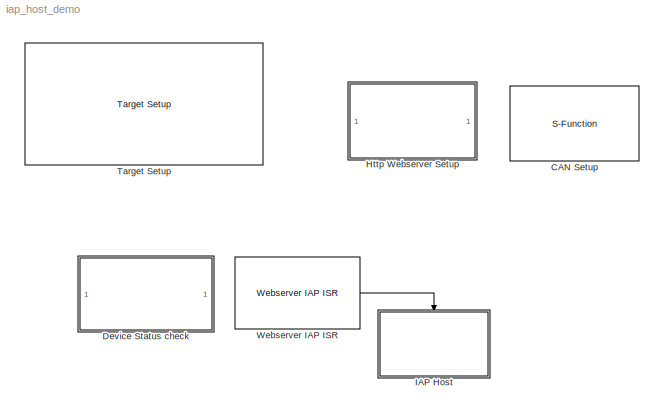
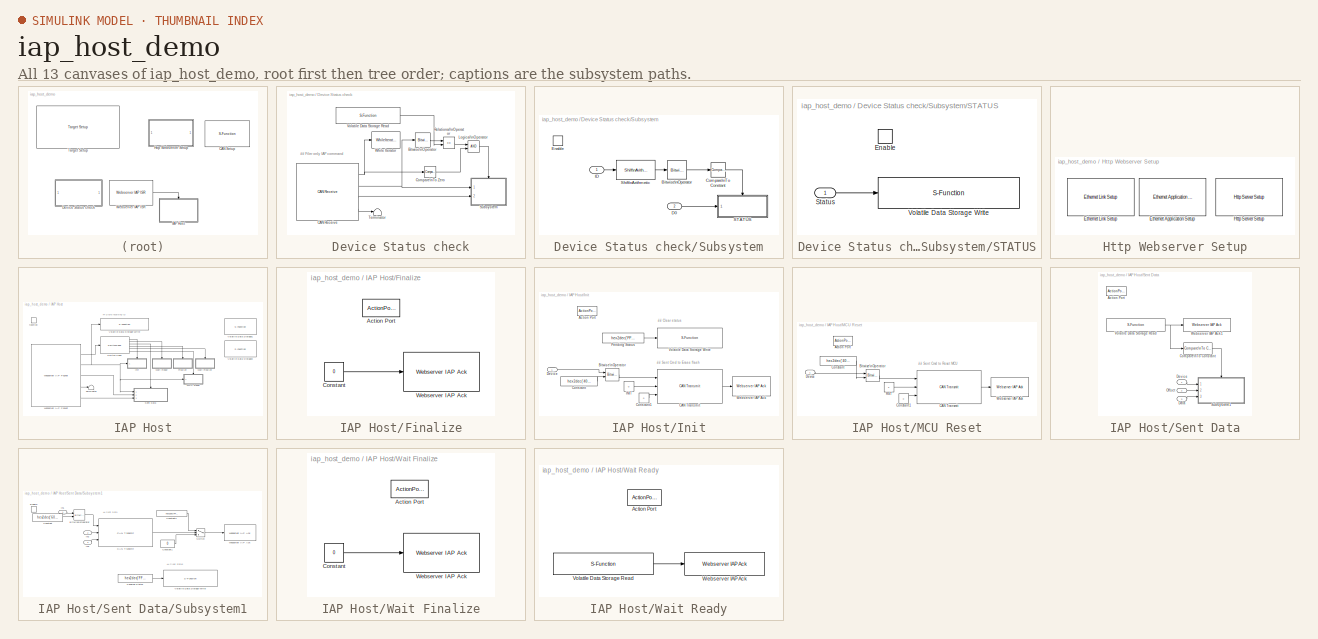
[diagram: thumbnail index - all 13 canvases of the model, root first then tree order]
MODEL iap_host_demo
KIND model
CONFIG PreLoadFcn = waijung.modelPreload; % Required for working with Waijung Blockset. Do not remove.
BLOCK [S-Function] CAN Setup
  EnableBusSupport = off
  FunctionName = stm32f4_can
  MaskCallbackString = |stm32f4_can_callback('canmodule');|stm32f4_can_callback('advance');|stm32f4_can_callback('bitrate_select');||stm32f4_can_callback('timingconf');|stm32f4_can_callback('timingconf');|stm32f4_can_callback('timingconf');|stm32f4_can_callback('timingconf');|stm32f4_can_callback('timingconf');||stm32f4_can_callback('remaptxpin');|stm32f4_can_callback('remaprxpin');|stm32f4_can_callback('sampletime');|s...<+82ch>
  MaskDescription = This block setups CAN Module.
  MaskDisplay = text(0.5, 0.5, 'CAN1_Setup\\nSpeed (bps): 125000\\nTx/Rx pin: B9/B8','ver','middle','hor','center');
  MaskEnableString = on,on,on,on,on,on,on,on,on,off,off,on,on,on,off,off,on,on,on,on,on,on,on,on,on,on,on,on
  MaskHelp = web(fullfile(waijungdocroot,'stm32f4_can_setup.htm'), '-browser')
  MaskIconFrame = on
  MaskIconOpaque = on
  MaskIconRotate = none
  MaskIconUnits = normalized
  MaskInitialization = stm32f4_can_callback('init');
  MaskPortRotate = default
  MaskPromptString = Configuration|CAN Module|Advance configuration|Baud rate (bps)|Resync Jump Width (SJW)|Bit segment 1 (BS1) + PROP_SEG|Bit segment 2 (BS2)|Adjust|Baud rate prescaler (BRP)|Baud rate (bps)|Time Quantum (Second), tq|CAN Tx pin|CAN Rx pin|Sample time (sec)|Compiled sample time (sec) in string|BlockID|Input port|Input port label|Output port|Output port label|Compatibility (Reserved for future use)|Conf...<+104ch>
  MaskSelfModifiable = on
  MaskStyleString = popup(Setup),popup(1|2),checkbox,popup(125000|250000|500000|1000000),popup(1tq|2tq|3tq|4tq),popup(1tq|2tq|3tq|4tq|5tq|6tq|7tq|8tq|9tq|10tq|11tq|12tq|13tq|14tq|15tq|16tq),popup(1tq|2tq|3tq|4tq|5tq|6tq|7tq|8tq),popup(Prescaler|Baudrate),edit,edit,edit,popup(Not used|A12|B9|D1|H13),popup(Not used|A11|B8|D0|I9),edit,edit,edit,edit,edit,edit,edit,edit,edit,edit,edit,edit,edit,edit,edit
  MaskTabNameString = ,,,,,,,,,,,,,,,,,,,,,,,,,,,
  MaskToolTipString = on,on,on,on,on,on,on,on,on,on,on,on,on,on,on,on,on,on,on,on,on,on,on,on,on,on,on,on
  MaskTunableValueString = off,off,off,off,off,off,off,off,off,off,off,off,off,off,off,off,off,off,off,off,off,off,off,off,off,off,off,off
  MaskType = stm32f4_can
  MaskValueString = Setup|1|off|125000|1tq|14tq|6tq|Prescaler|16|125000|3.8095e-007|B9|B8|inf|0.001|CANSetup|[]|{}|[]|{}|0|[\"125000\",\"16\",\"B\",\"9\",\"B\",\"8\",\"1tq\",\"14tq\",\"6tq\",\"ENABLE\"]|16|B|9|B|8|1
  MaskVarAliasString = ,,,,,,,,,,,,,,,,,,,,,,,,,,,
  MaskVariables = conf=&1;canmodule=&2;advance=&3;bitrate_select=&4;sjw=&5;bs1=&6;bs2=&7;timingconf=&8;brp=@9;bitrate=@10;tq=&11;remaptxpin=&12;remaprxpin=&13;sampletime=@14;sampletimestr=&15;blockid=&16;inputarray=@17;inputlabelarray=&18;outputarray=@19;outputlabelarray=&20;compat=&21;confstr=&22;presc=&23;txportstr=&24;txpinstr=&25;rxportstr=&26;rxpinstr=&27;lastmodule=&28;
  MaskVisibilityString = off,on,on,on,off,off,off,off,off,off,off,on,on,on,off,off,off,off,off,off,off,off,off,off,off,off,off,off
  Parameters = conf,canmodule,0,inputarray,outputarray,'','',confstr,sampletime,sampletimestr,blockid
  Ports = []
BLOCK [SubSystem] Device Status check
  FunctionWithSeparateData = off
  MaskHideContents = off
  MinAlgLoopOccurrences = off
  Opaque = off
  Ports = []
  PropExecContextOutsideSubsystem = off
  RTWSystemCode = Auto
  RequestExecContextInheritance = off
  TreatAsAtomicUnit = on
BLOCK [Reference] Device Status check/Bitwise\nOperator  REF=simulink/Logic and Bit\nOperations/Bitwise\nOperator
  BitMask = 255
  BitMaskRealWorld = Stored Integer
  NumInputPorts = 1
  Ports = [1, 1]
  SourceBlock = simulink/Logic and Bit\nOperations/Bitwise\nOperator
  SourceType = Bitwise Operator
  UseBitMask = on
  logicop = AND
BLOCK [Reference] Device Status check/CAN Receive  REF=stm32f4_canbus_lib/CAN Receive
  Ports = [0, 4]
  SourceBlock = stm32f4_canbus_lib/CAN Receive
  SourceType = stm32f4_can
  blockid = DeviceStatuscheckCANReceive
  buffersize = 32
  canmodule = 1
  compat = 0
  conf = Rx
  confstr = [\"Standard\",\"Mask\",\"1024\",\"1264\",\"off\",\"uint32\",\"uint32\",\"Not used\",\"Not used\",\"Not used\",\"Not used\",\"Not used\",\"Not used\",\"32\",\"8000\",\"0\",\"9E00\",\"4\"]
  data0type = uint32
  data1type = uint32
  data2type = Not used
  data3type = Not used
  data4type = Not used
  data5type = Not used
  data6type = Not used
  data7type = Not used
  datatype = uint32
  enableisr = off
  filtertype = Mask
  id = hex2dec('400')
  idmask = hex2dec('4F0')
  idtype = Standard
  inputarray = []
  inputlabelarray = {}
  outputarray = [ 5, 7, 7, 7]
  outputlabelarray = { 'Msg Pending','ID', 'D0 (uint32)', 'D1 (uint32)' }
  sampletime = inf
  sampletimestr = -1
  usedlc = off
BLOCK [Reference] Device Status check/Compare\nTo Zero  REF=simulink/Logic and Bit\nOperations/Compare\nTo Zero
  FunctionWithSeparateData = off
  LogicOutDataTypeMode = uint8
  Ports = [1, 1]
  RTWMemSecDataConstants = Inherit from model
  RTWMemSecDataInternal = Inherit from model
  RTWMemSecDataParameters = Inherit from model
  RTWMemSecFuncExecute = Inherit from model
  RTWMemSecFuncInitTerm = Inherit from model
  ShowPortLabels = FromPortIcon
  SourceBlock = simulink/Logic and Bit\nOperations/Compare\nTo Zero
  SourceType = Compare To Zero
  SystemSampleTime = -1
  ZeroCross = off
  relop = >
BLOCK [Logic] Device Status check/Logical\nOperator
  AllPortsSameDT = off
  LogicDataType = fixdt(0, 8)
  OutDataTypeMode = boolean
  OutDataTypeStr = boolean
  Ports = [2, 1]
BLOCK [RelationalOperator] Device Status check/Relational\nOperator
  InputSameDT = off
  LogicDataType = fixdt(0, 8)
  LogicOutDataTypeMode = boolean
  Operator = ==
  OutDataTypeStr = boolean
BLOCK [SubSystem] Device Status check/Subsystem
  FunctionWithSeparateData = off
  MaskHideContents = off
  MinAlgLoopOccurrences = off
  Opaque = off
  Ports = [2, 0, 1]
  PropExecContextOutsideSubsystem = off
  RTWSystemCode = Auto
  RequestExecContextInheritance = off
BLOCK [Reference] Device Status check/Subsystem/Bitwise\nOperator  REF=simulink/Logic and Bit\nOperations/Bitwise\nOperator
  BitMask = 3
  BitMaskRealWorld = Stored Integer
  NumInputPorts = 1
  Ports = [1, 1]
  SourceBlock = simulink/Logic and Bit\nOperations/Bitwise\nOperator
  SourceType = Bitwise Operator
  UseBitMask = on
  logicop = AND
BLOCK [Reference] Device Status check/Subsystem/Compare\nTo Constant  REF=simulink/Logic and Bit\nOperations/Compare\nTo Constant
  FunctionWithSeparateData = off
  LogicOutDataTypeMode = uint8
  Ports = [1, 1]
  RTWMemSecDataConstants = Inherit from model
  RTWMemSecDataInternal = Inherit from model
  RTWMemSecDataParameters = Inherit from model
  RTWMemSecFuncExecute = Inherit from model
  RTWMemSecFuncInitTerm = Inherit from model
  ShowPortLabels = FromPortIcon
  SourceBlock = simulink/Logic and Bit\nOperations/Compare\nTo Constant
  SourceType = Compare To Constant
  SystemSampleTime = -1
  ZeroCross = off
  const = 1
  relop = ==
BLOCK [Inport] Device Status check/Subsystem/D0
  IconDisplay = Port number
  Port = 2
BLOCK [EnablePort] Device Status check/Subsystem/Enable
  Ports = []
BLOCK [Inport] Device Status check/Subsystem/ID
  IconDisplay = Port number
BLOCK [SubSystem] Device Status check/Subsystem/STATUS
  FunctionWithSeparateData = off
  MaskHideContents = off
  MinAlgLoopOccurrences = off
  Opaque = off
  Ports = [1, 0, 1]
  PropExecContextOutsideSubsystem = off
  RTWSystemCode = Auto
  RequestExecContextInheritance = off
  TreatAsAtomicUnit = on
BLOCK [EnablePort] Device Status check/Subsystem/STATUS/Enable
  Ports = []
BLOCK [Inport] Device Status check/Subsystem/STATUS/Status
  IconDisplay = Port number
  OutDataType = fixdt(1, 16)
  OutScaling = 2^0
BLOCK [S-Function] Device Status check/Subsystem/STATUS/Volatile Data Storage Write
  EnableBusSupport = off
  FunctionName = waijung_vdata_write
  MaskCallbackString = waijung_vdata_write_callback('storagename');|waijung_vdata_write_callback('varname');|waijung_vdata_write_callback('sampletime');|waijung_vdata_write_callback('sampletimestr');|waijung_vdata_write_callback('blockid');|waijung_vdata_write_callback('storagetype');|  <repeated x4 — deduplicated; at blocks: Volatile Data Storage Write>
  MaskDescription = This block implements write data to a buffer.
  MaskDisplay = text(0.95, 0.5, 'Buffer: IAP_Device_Sta','ver','middle','hor','right');port_label('input',1,'D1(uint32)')
  MaskEnableString = on,off,off,off,off,on,on
  MaskHelp = web(fullfile(waijungdocroot,'Volatile_Data_Storage_Write.htm'))
  MaskIconFrame = on
  MaskIconOpaque = on
  MaskIconRotate = none
  MaskIconUnits = normalized
  MaskInitialization = waijung_vdata_write_callback('init');
  MaskPortRotate = default
  MaskPromptString = Storage Name|Variable name|Sample time (sec)|Compiled sample time (sec) in string|BlockID|Data type|Data type string
  MaskSelfModifiable = on
  MaskStyleString = popup(IAP_Device_Id|IAP_Device_Sta),edit,edit,edit,edit,edit,edit
  MaskTabNameString = ,,,,,,
  MaskToolTipString = on,on,on,on,on,on,on
  MaskTunableValueString = off,off,off,off,off,off,off
  MaskType = waijung_vdata_write
  MaskValueString = IAP_Device_Sta|IAPHostVolatileDataStorage2_IAP_Device_Sta|-1|-1|DeviceStatuscheckSubsystemSTATUSVolatileDataStorageWrite|uint32|uint32_t
  MaskVarAliasString = ,,,,,,
  MaskVariables = storagename=&1;varname=&2;sampletime=@3;sampletimestr=&4;blockid=&5;storagetype=&6;storagetypestr=&7;
  MaskVisibilityString = on,off,on,off,off,off,off
  Parameters = storagename,varname,sampletime,sampletimestr,blockid,storagetype,storagetypestr
  Ports = [1]
BLOCK [Reference] Device Status check/Subsystem/Shift\nArithmetic  REF=simulink/Logic and Bit\nOperations/Shift\nArithmetic
  FunctionWithSeparateData = off
  Ports = [1, 1]
  RTWMemSecDataConstants = Inherit from model
  RTWMemSecDataInternal = Inherit from model
  RTWMemSecDataParameters = Inherit from model
  RTWMemSecFuncExecute = Inherit from model
  RTWMemSecFuncInitTerm = Inherit from model
  ShowPortLabels = FromPortIcon
  SourceBlock = simulink/Logic and Bit\nOperations/Shift\nArithmetic
  SourceType = Shift Arithmetic
  SystemSampleTime = -1
  nBinPtShiftRight = 0
  nBitShiftRight = 8
BLOCK [Terminator] Device Status check/Terminator
BLOCK [S-Function] Device Status check/Volatile Data Storage Read
  EnableBusSupport = off
  FunctionName = waijung_vdata_read
  MaskCallbackString = waijung_vdata_read_callback('storagename');|waijung_vdata_read_callback('varname');|waijung_vdata_read_callback('sampletime');|waijung_vdata_read_callback('sampletimestr');|waijung_vdata_read_callback('blockid');|waijung_vdata_read_callback('storagetype');|  <repeated x3 — deduplicated; at blocks: Volatile Data Storage Read>
  MaskDescription = This block implements read data from a buffer.
  MaskDisplay = text(0.05, 0.5, 'Buffer: IAP_Device_Id','ver','middle','hor','left');port_label('output',1,'D1(uint32)')
  MaskEnableString = on,off,on,off,off,on,on
  MaskHelp = web(fullfile(waijungdocroot,'Volatile_Data_Storage_Read.htm'))
  MaskIconFrame = on
  MaskIconOpaque = on
  MaskIconRotate = none
  MaskIconUnits = normalized
  MaskInitialization = waijung_vdata_read_callback('init');
  MaskPortRotate = default
  MaskPromptString = Storage Name|Variable name|Sample time (sec)|Compiled sample time (sec) in string|BlockID|Data type|Data type string
  MaskSelfModifiable = on
  MaskStyleString = popup(IAP_Device_Id|IAP_Device_Sta),edit,edit,edit,edit,edit,edit
  MaskTabNameString = ,,,,,,
  MaskToolTipString = on,on,on,on,on,on,on
  MaskTunableValueString = off,off,off,off,off,off,off
  MaskType = waijung_vdata_read
  MaskValueString = IAP_Device_Id|IAPHostVolatileDataStorage1_IAP_Device_Id|inf|-1|DeviceStatuscheckVolatileDataStorageRead|uint32|uint32_t
  MaskVarAliasString = ,,,,,,
  MaskVariables = storagename=&1;varname=&2;sampletime=@3;sampletimestr=&4;blockid=&5;storagetype=&6;storagetypestr=&7;
  MaskVisibilityString = on,off,on,off,off,off,off
  Parameters = storagename,varname,sampletime,sampletimestr,blockid,storagetype,storagetypestr
  Ports = [0, 1]
BLOCK [WhileIterator] Device Status check/While Iterator
  Ports = [1]
  WhileBlockType = do-while
BLOCK [SubSystem] Http Webserver Setup
  FunctionWithSeparateData = off
  MaskHideContents = off
  MinAlgLoopOccurrences = off
  Opaque = off
  Ports = []
  PropExecContextOutsideSubsystem = off
  RTWSystemCode = Auto
  RequestExecContextInheritance = off
BLOCK [Reference] Http Webserver Setup/Ethernet Application Setup  REF=waijung_webserver/Ethernet Application Setup
  Ports = []
  SourceBlock = waijung_webserver/Ethernet Application Setup
  SourceType = waijung_ethernet_app
  blockid = HttpWebserverSetupEthernetApplicationSetup
  compat = 0
  conf = Setup
  dhcp = off
  gateway = 192.168.1.1
  inputportlabel = {}
  inputporttype = []
  inputportwidth = []
  ipaddress = 192.168.1.41
  macaddress = 02-00-00-00-00-00
  netmask = 255.255.255.0
  optionstring = [\"Dummy\",\"192\",\"168\",\"1\",\"41\",\"255\",\"255\",\"255\",\"0\",\"192\",\"168\",\"1\",\"1\",\"02\",\"00\",\"00\",\"00\",\"00\",\"00\",\"off\",\"10\"]
  outputportlabel = {}
  outputporttype = []
  outputportwidth = []
  portpinstr = 0
  sampletime = 0.001
  timerscaler = 10
BLOCK [Reference] Http Webserver Setup/Ethernet Link Setup  REF=waijung_webserver/Ethernet Link Setup
  Ports = []
  SourceBlock = waijung_webserver/Ethernet Link Setup
  SourceType = waijung_ethernet_inf
  blockid = HttpWebserverSetupEthernetLinkSetup
  compat = 0
  conf = Setup
  inputportlabel = {}
  inputporttype = []
  inputportwidth = []
  interfacepin = Profile #1
  optionstring = [\"xxx\",\"on\",\"on\",\"on\",\"off\",\"on\",\"off\",\"off\",\"off\",\"off\",\"on\",\"on\",\"on\",\"on\",\"on\",\"on\",\"on\",\"off\",\"on\",\"on\",\"on\",\"on\",\"on\",\"on\",\"on\",\"on\",\"on\",\"on\",\"A\",\"0\",\"A\",\"1\",\"A\",\"2\",\"A\",\"3\",\"A\",\"7\",\"B\",\"0\",\"B\",\"1\",\"N\",\"ot used\",\"E\",\"2\",\"B\",\"10\",\"B\",\"11\",\"B\",\"12\",\"B\",\"13\",\"C\",\"1\",\"C\",\"2\",\"C\",...<+38ch>
  outputportlabel = {}
  outputporttype = []
  outputportwidth = []
  pin_col = A3
  pin_crs = A0
  pin_dv = A7
  pin_mdc = C1
  pin_mdio = A2
  pin_pps = Not used
  pin_rxclk = A1
  pin_rxd0 = C4
  pin_rxd1 = C5
  pin_rxd2 = B0
  pin_rxd3 = B1
  pin_rxer = B10
  pin_txclk = C3
  pin_txd0 = B12
  pin_txd1 = B13
  pin_txd2 = C2
  pin_txd3 = E2
  pin_txen = B11
  portpinstr = A0,A1,A2,A3,A7,B0,B1,E2,B10,B11,B12,B13,C1,C2,C3,C4,C5
  sampletime = inf
  wj_interfacetype = MII
BLOCK [Reference] Http Webserver Setup/Http Server Setup  REF=waijung_webserver/Http Server Setup
  Ports = []
  SourceBlock = waijung_webserver/Http Server Setup
  SourceType = waijung_httpserver_setup
  blockid = HttpWebserverSetupHttpServerSetup
  compat = 0
  conf = Setup
  debugport = Disable
  iap = Enable
  inputportlabel = {}
  inputporttype = []
  inputportwidth = []
  mempool = 8
  optionstring = [\"80\",\"0\",\"0\",\"Disable\",\"Enable\",\"8\",\"17.02a\",\"\",\"\",\"\"]
  outputportlabel = {}
  outputporttype = []
  outputportwidth = []
  port = 80
  portpinstr = 0
  sampletime = inf
  sqlite = Disable
  ssl = Disable
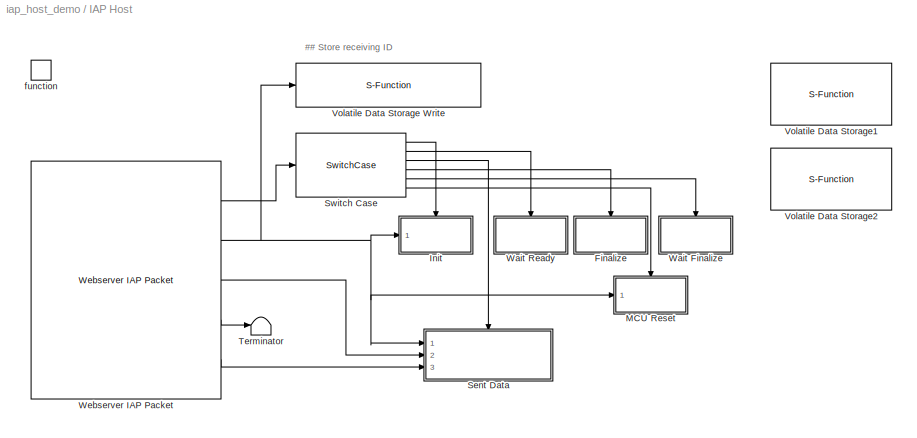
BLOCK [SubSystem] IAP Host
  FunctionWithSeparateData = off
  MaskHideContents = off
  MinAlgLoopOccurrences = off
  Opaque = off
  Ports = [0, 0, 0, 1]
  PropExecContextOutsideSubsystem = off
  RTWSystemCode = Auto
  RequestExecContextInheritance = off
  TreatAsAtomicUnit = on
BLOCK [SubSystem] IAP Host/Finalize
  FunctionWithSeparateData = off
  MaskHideContents = off
  MinAlgLoopOccurrences = off
  Opaque = off
  Ports = [0, 0, 0, 0, 0, 0, 0, 1]
  PropExecContextOutsideSubsystem = off
  RTWSystemCode = Auto
  RequestExecContextInheritance = off
  TreatAsAtomicUnit = on
BLOCK [ActionPort] IAP Host/Finalize/Action Port
  ActionType = case
BLOCK [Constant] IAP Host/Finalize/Constant
  OutDataType = fixdt(1, 16)
  OutScaling = 2^0
  Value = 0
BLOCK [Reference] IAP Host/Finalize/Webserver IAP Ack  REF=waijung_webserver_iap_lib/Webserver IAP Ack
  Ports = [1]
  SourceBlock = waijung_webserver_iap_lib/Webserver IAP Ack
  SourceType = waijung_webserver_iap
  blockid = IAPHostFinalizeWebserverIAPAck
  compat = 0
  conf = Ack
  confstr = [\"Param1\",\"Param1\"]
  enableisr = off
  inputarray = [-1]
  inputlabelarray = {'Status'}
  outputarray = []
  outputlabelarray = {}
  sampletime = inf
  sampletimestr = -1
BLOCK [SubSystem] IAP Host/Init
  FunctionWithSeparateData = off
  MaskHideContents = off
  MinAlgLoopOccurrences = off
  Opaque = off
  Ports = [1, 0, 0, 0, 0, 0, 0, 1]
  PropExecContextOutsideSubsystem = off
  RTWSystemCode = Auto
  RequestExecContextInheritance = off
  TreatAsAtomicUnit = on
BLOCK [ActionPort] IAP Host/Init/Action Port
  ActionType = case
BLOCK [Reference] IAP Host/Init/Bitwise\nOperator  REF=simulink/Logic and Bit\nOperations/Bitwise\nOperator
  BitMask = bin2dec('11011001')
  BitMaskRealWorld = Stored Integer
  NumInputPorts = 2
  Ports = [2, 1]
  SourceBlock = simulink/Logic and Bit\nOperations/Bitwise\nOperator
  SourceType = Bitwise Operator
  UseBitMask = off
  logicop = OR
BLOCK [Reference] IAP Host/Init/CAN Transmit  REF=stm32f4_canbus_lib/CAN Transmit
  Ports = [3, 1]
  SourceBlock = stm32f4_canbus_lib/CAN Transmit
  SourceType = stm32f4_can
  blockid = IAPHostInitCANTransmit
  canmodule = 1
  compat = 0
  conf = Tx
  confstr = [\"Blocking\",\"0.005\",\"Standard\",\"off\",\"0\",\"on\",\"8\",\"on\",\"uint32\",\"uint32\",\"Not used\",\"Not used\",\"Not used\",\"Not used\",\"Not used\",\"Not used\"]
  data0type = uint32
  data1type = uint32
  data2type = Not used
  data3type = Not used
  data4type = Not used
  data5type = Not used
  data6type = Not used
  data7type = Not used
  datatype = uint32
  dlc = 8
  enablestatus = on
  id = 0
  idtype = Standard
  inputarray = [ -1, 7, 7]
  inputlabelarray = { 'ID', 'D0 (uint32)', 'D1 (uint32)' }
  outputarray = [7]
  outputlabelarray = {'Status'}
  sampletime = -1
  sampletimestr = -1
  specificdlc = on
  specificid = off
  timeout = 0.005
  transfer = Blocking
BLOCK [Constant] IAP Host/Init/Constant
  OutDataType = fixdt(1, 16)
  OutDataTypeMode = uint32
  OutDataTypeStr = uint32
  OutScaling = 2^0
  Value = hex2dec('400')
BLOCK [Constant] IAP Host/Init/Constant1
  OutDataType = fixdt(1, 16)
  OutDataTypeMode = uint32
  OutDataTypeStr = uint32
  OutScaling = 2^0
  Value = 0
BLOCK [Inport] IAP Host/Init/Device
  IconDisplay = Port number
  OutDataType = fixdt(1, 16)
  OutScaling = 2^0
BLOCK [Constant] IAP Host/Init/INIT
  OutDataType = fixdt(1, 16)
  OutDataTypeMode = uint32
  OutDataTypeStr = uint32
  OutScaling = 2^0
  Value = 0
BLOCK [Constant] IAP Host/Init/Pending Status
  OutDataType = fixdt(1, 16)
  OutDataTypeMode = uint32
  OutDataTypeStr = uint32
  OutScaling = 2^0
  Value = hex2dec('FFFFFFFF')
BLOCK [S-Function] IAP Host/Init/Volatile Data Storage Write
  EnableBusSupport = off
  FunctionName = waijung_vdata_write
  MaskDescription = This block implements write data to a buffer.
  MaskDisplay = text(0.95, 0.5, 'Buffer: IAP_Device_Sta','ver','middle','hor','right');port_label('input',1,'D1(uint32)')
  MaskEnableString = on,off,off,off,off,on,on
  MaskHelp = web(fullfile(waijungdocroot,'Volatile_Data_Storage_Write.htm'))
  MaskIconFrame = on
  MaskIconOpaque = on
  MaskIconRotate = none
  MaskIconUnits = normalized
  MaskInitialization = waijung_vdata_write_callback('init');
  MaskPortRotate = default
  MaskPromptString = Storage Name|Variable name|Sample time (sec)|Compiled sample time (sec) in string|BlockID|Data type|Data type string
  MaskSelfModifiable = on
  MaskStyleString = popup(IAP_Device_Id|IAP_Device_Sta),edit,edit,edit,edit,edit,edit
  MaskTabNameString = ,,,,,,
  MaskToolTipString = on,on,on,on,on,on,on
  MaskTunableValueString = off,off,off,off,off,off,off
  MaskType = waijung_vdata_write
  MaskValueString = IAP_Device_Sta|IAPHostVolatileDataStorage2_IAP_Device_Sta|-1|-1|IAPHostInitVolatileDataStorageWrite|uint32|uint32_t
  MaskVarAliasString = ,,,,,,
  MaskVariables = storagename=&1;varname=&2;sampletime=@3;sampletimestr=&4;blockid=&5;storagetype=&6;storagetypestr=&7;
  MaskVisibilityString = on,off,on,off,off,off,off
  Parameters = storagename,varname,sampletime,sampletimestr,blockid,storagetype,storagetypestr
  Ports = [1]
BLOCK [Reference] IAP Host/Init/Webserver IAP Ack  REF=waijung_webserver_iap_lib/Webserver IAP Ack
  Ports = [1]
  SourceBlock = waijung_webserver_iap_lib/Webserver IAP Ack
  SourceType = waijung_webserver_iap
  blockid = IAPHostInitWebserverIAPAck
  compat = 0
  conf = Ack
  confstr = [\"Param1\",\"Param1\"]
  enableisr = off
  inputarray = [-1]
  inputlabelarray = {'Status'}
  outputarray = []
  outputlabelarray = {}
  sampletime = inf
  sampletimestr = -1
BLOCK [SubSystem] IAP Host/MCU Reset
  FunctionWithSeparateData = off
  MaskHideContents = off
  MinAlgLoopOccurrences = off
  Opaque = off
  Ports = [1, 0, 0, 0, 0, 0, 0, 1]
  PropExecContextOutsideSubsystem = off
  RTWSystemCode = Auto
  RequestExecContextInheritance = off
  TreatAsAtomicUnit = on
BLOCK [ActionPort] IAP Host/MCU Reset/Action Port
  ActionType = case
BLOCK [Reference] IAP Host/MCU Reset/Bitwise\nOperator  REF=simulink/Logic and Bit\nOperations/Bitwise\nOperator
  BitMask = bin2dec('11011001')
  BitMaskRealWorld = Stored Integer
  NumInputPorts = 2
  Ports = [2, 1]
  SourceBlock = simulink/Logic and Bit\nOperations/Bitwise\nOperator
  SourceType = Bitwise Operator
  UseBitMask = off
  logicop = OR
BLOCK [Reference] IAP Host/MCU Reset/CAN Transmit  REF=stm32f4_canbus_lib/CAN Transmit
  Ports = [3, 1]
  SourceBlock = stm32f4_canbus_lib/CAN Transmit
  SourceType = stm32f4_can
  blockid = IAPHostMCUResetCANTransmit
  canmodule = 1
  compat = 0
  conf = Tx
  confstr = [\"Blocking\",\"0.005\",\"Standard\",\"off\",\"0\",\"on\",\"8\",\"on\",\"uint32\",\"uint32\",\"Not used\",\"Not used\",\"Not used\",\"Not used\",\"Not used\",\"Not used\"]
  data0type = uint32
  data1type = uint32
  data2type = Not used
  data3type = Not used
  data4type = Not used
  data5type = Not used
  data6type = Not used
  data7type = Not used
  datatype = uint32
  dlc = 8
  enablestatus = on
  id = 0
  idtype = Standard
  inputarray = [ -1, 7, 7]
  inputlabelarray = { 'ID', 'D0 (uint32)', 'D1 (uint32)' }
  outputarray = [7]
  outputlabelarray = {'Status'}
  sampletime = -1
  sampletimestr = -1
  specificdlc = on
  specificid = off
  timeout = 0.005
  transfer = Blocking
BLOCK [Constant] IAP Host/MCU Reset/Constant
  OutDataType = fixdt(1, 16)
  OutDataTypeMode = uint32
  OutDataTypeStr = uint32
  OutScaling = 2^0
  Value = hex2dec('400')
BLOCK [Constant] IAP Host/MCU Reset/Constant1
  OutDataType = fixdt(1, 16)
  OutDataTypeMode = uint32
  OutDataTypeStr = uint32
  OutScaling = 2^0
  Value = 0
BLOCK [Inport] IAP Host/MCU Reset/Device
  IconDisplay = Port number
  OutDataType = fixdt(1, 16)
  OutScaling = 2^0
BLOCK [Constant] IAP Host/MCU Reset/RST
  OutDataType = fixdt(1, 16)
  OutDataTypeMode = uint32
  OutDataTypeStr = uint32
  OutScaling = 2^0
  Value = 2
BLOCK [Reference] IAP Host/MCU Reset/Webserver IAP Ack  REF=waijung_webserver_iap_lib/Webserver IAP Ack
  Ports = [1]
  SourceBlock = waijung_webserver_iap_lib/Webserver IAP Ack
  SourceType = waijung_webserver_iap
  blockid = IAPHostMCUResetWebserverIAPAck
  compat = 0
  conf = Ack
  confstr = [\"Param1\",\"Param1\"]
  enableisr = off
  inputarray = [-1]
  inputlabelarray = {'Status'}
  outputarray = []
  outputlabelarray = {}
  sampletime = inf
  sampletimestr = -1
BLOCK [SubSystem] IAP Host/Sent Data
  FunctionWithSeparateData = off
  MaskHideContents = off
  MinAlgLoopOccurrences = off
  Opaque = off
  Ports = [3, 0, 0, 0, 0, 0, 0, 1]
  PropExecContextOutsideSubsystem = off
  RTWSystemCode = Auto
  RequestExecContextInheritance = off
  TreatAsAtomicUnit = on
BLOCK [ActionPort] IAP Host/Sent Data/Action Port
  ActionType = case
BLOCK [Reference] IAP Host/Sent Data/Compare\nTo Constant  REF=simulink/Logic and Bit\nOperations/Compare\nTo Constant
  FunctionWithSeparateData = off
  LogicOutDataTypeMode = uint8
  Ports = [1, 1]
  RTWMemSecDataConstants = Inherit from model
  RTWMemSecDataInternal = Inherit from model
  RTWMemSecDataParameters = Inherit from model
  RTWMemSecFuncExecute = Inherit from model
  RTWMemSecFuncInitTerm = Inherit from model
  ShowPortLabels = FromPortIcon
  SourceBlock = simulink/Logic and Bit\nOperations/Compare\nTo Constant
  SourceType = Compare To Constant
  SystemSampleTime = -1
  ZeroCross = off
  const = 0
  relop = ==
BLOCK [Inport] IAP Host/Sent Data/Data
  IconDisplay = Port number
  OutDataType = fixdt(1, 16)
  OutScaling = 2^0
  Port = 3
BLOCK [Inport] IAP Host/Sent Data/Device
  IconDisplay = Port number
  OutDataType = fixdt(1, 16)
  OutScaling = 2^0
BLOCK [Inport] IAP Host/Sent Data/Offset
  IconDisplay = Port number
  OutDataType = fixdt(1, 16)
  OutScaling = 2^0
  Port = 2
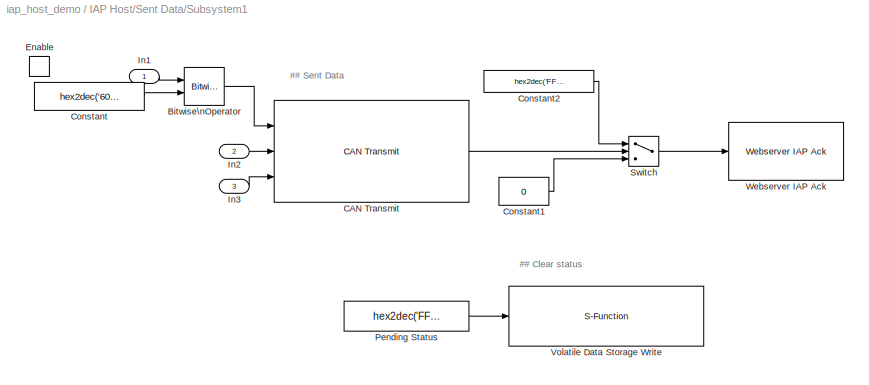
BLOCK [SubSystem] IAP Host/Sent Data/Subsystem1
  FunctionWithSeparateData = off
  MaskHideContents = off
  MinAlgLoopOccurrences = off
  Opaque = off
  Ports = [3, 0, 1]
  PropExecContextOutsideSubsystem = off
  RTWSystemCode = Auto
  RequestExecContextInheritance = off
BLOCK [Reference] IAP Host/Sent Data/Subsystem1/Bitwise\nOperator  REF=simulink/Logic and Bit\nOperations/Bitwise\nOperator
  BitMask = bin2dec('11011001')
  BitMaskRealWorld = Stored Integer
  NumInputPorts = 2
  Ports = [2, 1]
  SourceBlock = simulink/Logic and Bit\nOperations/Bitwise\nOperator
  SourceType = Bitwise Operator
  UseBitMask = off
  logicop = OR
BLOCK [Reference] IAP Host/Sent Data/Subsystem1/CAN Transmit  REF=stm32f4_canbus_lib/CAN Transmit
  Ports = [3, 1]
  SourceBlock = stm32f4_canbus_lib/CAN Transmit
  SourceType = stm32f4_can
  blockid = IAPHostSentDataSubsystem1CANTransmit
  canmodule = 1
  compat = 0
  conf = Tx
  confstr = [\"Blocking\",\"0.01\",\"Standard\",\"off\",\"0\",\"on\",\"8\",\"on\",\"uint32\",\"uint32\",\"Not used\",\"Not used\",\"Not used\",\"Not used\",\"Not used\",\"Not used\"]
  data0type = uint32
  data1type = uint32
  data2type = Not used
  data3type = Not used
  data4type = Not used
  data5type = Not used
  data6type = Not used
  data7type = Not used
  datatype = uint32
  dlc = 8
  enablestatus = on
  id = 0
  idtype = Standard
  inputarray = [ -1, 7, 7]
  inputlabelarray = { 'ID', 'D0 (uint32)', 'D1 (uint32)' }
  outputarray = [7]
  outputlabelarray = {'Status'}
  sampletime = -1
  sampletimestr = -1
  specificdlc = on
  specificid = off
  timeout = 0.01
  transfer = Blocking
BLOCK [Constant] IAP Host/Sent Data/Subsystem1/Constant
  OutDataType = fixdt(1, 16)
  OutDataTypeMode = uint32
  OutDataTypeStr = uint32
  OutScaling = 2^0
  Value = hex2dec('600')
BLOCK [Constant] IAP Host/Sent Data/Subsystem1/Constant1
  OutDataType = fixdt(1, 16)
  OutDataTypeMode = uint32
  OutDataTypeStr = uint32
  OutScaling = 2^0
  Value = 0
BLOCK [Constant] IAP Host/Sent Data/Subsystem1/Constant2
  OutDataType = fixdt(1, 16)
  OutDataTypeMode = uint32
  OutDataTypeStr = uint32
  OutScaling = 2^0
  Value = hex2dec('FFFFFFFF')
BLOCK [EnablePort] IAP Host/Sent Data/Subsystem1/Enable
  Ports = []
BLOCK [Inport] IAP Host/Sent Data/Subsystem1/In1
  IconDisplay = Port number
BLOCK [Inport] IAP Host/Sent Data/Subsystem1/In2
  IconDisplay = Port number
  Port = 2
BLOCK [Inport] IAP Host/Sent Data/Subsystem1/In3
  IconDisplay = Port number
  Port = 3
BLOCK [Constant] IAP Host/Sent Data/Subsystem1/Pending Status
  OutDataType = fixdt(1, 16)
  OutDataTypeMode = uint32
  OutDataTypeStr = uint32
  OutScaling = 2^0
  Value = hex2dec('FFFFFFFF')
BLOCK [Switch] IAP Host/Sent Data/Subsystem1/Switch
  Criteria = u2 ~= 0
  InputSameDT = off
  OutDataType = fixdt(1, 16)
  OutScaling = 2^0
  SaturateOnIntegerOverflow = off
BLOCK [S-Function] IAP Host/Sent Data/Subsystem1/Volatile Data Storage Write
  EnableBusSupport = off
  FunctionName = waijung_vdata_write
  MaskDescription = This block implements write data to a buffer.
  MaskDisplay = text(0.95, 0.5, 'Buffer: IAP_Device_Sta','ver','middle','hor','right');port_label('input',1,'D1(uint32)')
  MaskEnableString = on,off,off,off,off,on,on
  MaskHelp = web(fullfile(waijungdocroot,'Volatile_Data_Storage_Write.htm'))
  MaskIconFrame = on
  MaskIconOpaque = on
  MaskIconRotate = none
  MaskIconUnits = normalized
  MaskInitialization = waijung_vdata_write_callback('init');
  MaskPortRotate = default
  MaskPromptString = Storage Name|Variable name|Sample time (sec)|Compiled sample time (sec) in string|BlockID|Data type|Data type string
  MaskSelfModifiable = on
  MaskStyleString = popup(IAP_Device_Id|IAP_Device_Sta),edit,edit,edit,edit,edit,edit
  MaskTabNameString = ,,,,,,
  MaskToolTipString = on,on,on,on,on,on,on
  MaskTunableValueString = off,off,off,off,off,off,off
  MaskType = waijung_vdata_write
  MaskValueString = IAP_Device_Sta|IAPHostVolatileDataStorage2_IAP_Device_Sta|-1|-1|IAPHostSentDataSubsystem1VolatileDataStorageWrite|uint32|uint32_t
  MaskVarAliasString = ,,,,,,
  MaskVariables = storagename=&1;varname=&2;sampletime=@3;sampletimestr=&4;blockid=&5;storagetype=&6;storagetypestr=&7;
  MaskVisibilityString = on,off,on,off,off,off,off
  Parameters = storagename,varname,sampletime,sampletimestr,blockid,storagetype,storagetypestr
  Ports = [1]
BLOCK [Reference] IAP Host/Sent Data/Subsystem1/Webserver IAP Ack  REF=waijung_webserver_iap_lib/Webserver IAP Ack
  Ports = [1]
  SourceBlock = waijung_webserver_iap_lib/Webserver IAP Ack
  SourceType = waijung_webserver_iap
  blockid = IAPHostSentDataSubsystem1WebserverIAPAck
  compat = 0
  conf = Ack
  confstr = [\"Param1\",\"Param1\"]
  enableisr = off
  inputarray = [-1]
  inputlabelarray = {'Status'}
  outputarray = []
  outputlabelarray = {}
  sampletime = inf
  sampletimestr = -1
BLOCK [S-Function] IAP Host/Sent Data/Volatile Data Storage Read
  EnableBusSupport = off
  FunctionName = waijung_vdata_read
  MaskDescription = This block implements read data from a buffer.
  MaskDisplay = text(0.05, 0.5, 'Buffer: IAP_Device_Sta','ver','middle','hor','left');port_label('output',1,'D1(uint32)')
  MaskEnableString = on,off,on,off,off,on,on
  MaskHelp = web(fullfile(waijungdocroot,'Volatile_Data_Storage_Read.htm'))
  MaskIconFrame = on
  MaskIconOpaque = on
  MaskIconRotate = none
  MaskIconUnits = normalized
  MaskInitialization = waijung_vdata_read_callback('init');
  MaskPortRotate = default
  MaskPromptString = Storage Name|Variable name|Sample time (sec)|Compiled sample time (sec) in string|BlockID|Data type|Data type string
  MaskSelfModifiable = on
  MaskStyleString = popup(IAP_Device_Id|IAP_Device_Sta),edit,edit,edit,edit,edit,edit
  MaskTabNameString = ,,,,,,
  MaskToolTipString = on,on,on,on,on,on,on
  MaskTunableValueString = off,off,off,off,off,off,off
  MaskType = waijung_vdata_read
  MaskValueString = IAP_Device_Sta|IAPHostVolatileDataStorage2_IAP_Device_Sta|inf|-1|IAPHostSentDataVolatileDataStorageRead|uint32|uint32_t
  MaskVarAliasString = ,,,,,,
  MaskVariables = storagename=&1;varname=&2;sampletime=@3;sampletimestr=&4;blockid=&5;storagetype=&6;storagetypestr=&7;
  MaskVisibilityString = on,off,on,off,off,off,off
  Parameters = storagename,varname,sampletime,sampletimestr,blockid,storagetype,storagetypestr
  Ports = [0, 1]
BLOCK [Reference] IAP Host/Sent Data/Webserver IAP Ack1  REF=waijung_webserver_iap_lib/Webserver IAP Ack
  Ports = [1]
  SourceBlock = waijung_webserver_iap_lib/Webserver IAP Ack
  SourceType = waijung_webserver_iap
  blockid = IAPHostSentDataWebserverIAPAck1
  compat = 0
  conf = Ack
  confstr = [\"Param1\",\"Param1\"]
  enableisr = off
  inputarray = [-1]
  inputlabelarray = {'Status'}
  outputarray = []
  outputlabelarray = {}
  sampletime = inf
  sampletimestr = -1
BLOCK [SwitchCase] IAP Host/Switch Case
  CaseConditions = {0,1,2,3,4,5}
  CaseShowDefault = off
  Ports = [1, 6]
BLOCK [Terminator] IAP Host/Terminator
BLOCK [S-Function] IAP Host/Volatile Data Storage Write
  EnableBusSupport = off
  FunctionName = waijung_vdata_write
  MaskDescription = This block implements write data to a buffer.
  MaskDisplay = text(0.95, 0.5, 'Buffer: IAP_Device_Id','ver','middle','hor','right');port_label('input',1,'D1(uint32)')
  MaskEnableString = on,off,off,off,off,on,on
  MaskHelp = web(fullfile(waijungdocroot,'Volatile_Data_Storage_Write.htm'))
  MaskIconFrame = on
  MaskIconOpaque = on
  MaskIconRotate = none
  MaskIconUnits = normalized
  MaskInitialization = waijung_vdata_write_callback('init');
  MaskPortRotate = default
  MaskPromptString = Storage Name|Variable name|Sample time (sec)|Compiled sample time (sec) in string|BlockID|Data type|Data type string
  MaskSelfModifiable = on
  MaskStyleString = popup(IAP_Device_Id|IAP_Device_Sta),edit,edit,edit,edit,edit,edit
  MaskTabNameString = ,,,,,,
  MaskToolTipString = on,on,on,on,on,on,on
  MaskTunableValueString = off,off,off,off,off,off,off
  MaskType = waijung_vdata_write
  MaskValueString = IAP_Device_Id|IAPHostVolatileDataStorage1_IAP_Device_Id|-1|-1|IAPHostVolatileDataStorageWrite|uint32|uint32_t
  MaskVarAliasString = ,,,,,,
  MaskVariables = storagename=&1;varname=&2;sampletime=@3;sampletimestr=&4;blockid=&5;storagetype=&6;storagetypestr=&7;
  MaskVisibilityString = on,off,on,off,off,off,off
  Parameters = storagename,varname,sampletime,sampletimestr,blockid,storagetype,storagetypestr
  Ports = [1]
BLOCK [S-Function] IAP Host/Volatile Data Storage1
  EnableBusSupport = off
  FunctionName = waijung_vdata_storage
  MaskCallbackString = waijung_vdata_storage_callback('storagetype');|waijung_vdata_storage_callback('storagename');|waijung_vdata_storage_callback('initval');|waijung_vdata_storage_callback('varname');||waijung_vdata_storage_callback('initvalstring');|waijung_vdata_storage_callback('webintegration');|waijung_vdata_storage_callback('weboutputformat');|||waijung_vdata_storage_callback('sampletime');|waijung_vdata_storage...<+71ch>
  MaskDescription = This block implements a volatile Data Storage.\n\nWeb CGI varset/varget integratiopn:\nEnable - In webserver application, allow remote access via http.\nDisable - Variable is use in local only.
  MaskDisplay = text(0.5, 0.5, 'Name: IAP_Device_Id\\nType: uint32','ver','middle','hor','center')
  MaskEnableString = on,on,on,off,on,on,on,on,off,on,on,off,off,on
  MaskHelp = web(fullfile(waijungdocroot,'Volatile_Data_Storage.htm'))
  MaskIconFrame = on
  MaskIconOpaque = on
  MaskIconRotate = none
  MaskIconUnits = normalized
  MaskInitialization = waijung_vdata_storage_callback('init');
  MaskPortRotate = default
  MaskPromptString = Storage Type|Storage Name (must be a valid variable name)|Initial value (Apply at Power on Reset only)|Variable name|Size (bytes)|Initial value (Apply at Power on Reset only)|Web CGI varget/varset integration|Web CGI varget output format|Web CGI varset callback|Last selected Storage Type|Sample time (sec)|Compiled sample time (sec) in string|BlockID|Type string
  MaskSelfModifiable = on
  MaskStyleString = popup(double|single|uint32|int32|uint16|int16|uint8|int8|string),edit,edit,edit,edit,edit,popup(Disable|ReadOnly|Write/ Read|ReadOnly with KeyValuePair|Write/ Read with KeyValuePair),edit,edit,popup(double|single|uint32|int32|uint16|int16|uint8|int8|string),edit,edit,edit,edit
  MaskTabNameString = ,,,,,,,,,,,,,
  MaskToolTipString = on,on,on,on,on,on,on,on,on,on,on,on,on,on
  MaskTunableValueString = off,off,off,off,off,off,off,off,off,off,off,off,off,off
  MaskType = waijung_vdata_storage
  MaskValueString = uint32|IAP_Device_Id|0|IAPHostVolatileDataStorage1_IAP_Device_Id|64|'Initial string'|Disable|'%u'|(void*)0|uint32|-1|-1|IAPHostVolatileDataStorage1|uint32_t
  MaskVarAliasString = ,,,,,,,,,,,,,
  MaskVariables = storagetype=&1;storagename=&2;initval=@3;varname=&4;buffersize=@5;initvalstring=@6;webintegration=&7;weboutputformat=&8;webcgicallback=&9;laststoragetype=&10;sampletime=@11;sampletimestr=&12;blockid=&13;storagetypestr=&14;
  MaskVisibilityString = on,on,on,off,off,off,on,off,off,off,on,off,off,off
  Parameters = storagetype,storagename,initval,varname,buffersize,initvalstring,sampletime,sampletimestr,blockid,storagetypestr
  Ports = []
BLOCK [S-Function] IAP Host/Volatile Data Storage2
  EnableBusSupport = off
  FunctionName = waijung_vdata_storage
  MaskCallbackString = waijung_vdata_storage_callback('storagetype');|waijung_vdata_storage_callback('storagename');|waijung_vdata_storage_callback('initval');|waijung_vdata_storage_callback('varname');||waijung_vdata_storage_callback('initvalstring');|waijung_vdata_storage_callback('webintegration');|waijung_vdata_storage_callback('weboutputformat');|||waijung_vdata_storage_callback('sampletime');|waijung_vdata_storage...<+71ch>
  MaskDescription = This block implements a volatile Data Storage.\n\nWeb CGI varset/varget integratiopn:\nEnable - In webserver application, allow remote access via http.\nDisable - Variable is use in local only.
  MaskDisplay = text(0.5, 0.5, 'Name: IAP_Device_Sta\\nType: uint32','ver','middle','hor','center')
  MaskEnableString = on,on,on,off,on,on,on,on,off,on,on,off,off,on
  MaskHelp = web(fullfile(waijungdocroot,'Volatile_Data_Storage.htm'))
  MaskIconFrame = on
  MaskIconOpaque = on
  MaskIconRotate = none
  MaskIconUnits = normalized
  MaskInitialization = waijung_vdata_storage_callback('init');
  MaskPortRotate = default
  MaskPromptString = Storage Type|Storage Name (must be a valid variable name)|Initial value (Apply at Power on Reset only)|Variable name|Size (bytes)|Initial value (Apply at Power on Reset only)|Web CGI varget/varset integration|Web CGI varget output format|Web CGI varset callback|Last selected Storage Type|Sample time (sec)|Compiled sample time (sec) in string|BlockID|Type string
  MaskSelfModifiable = on
  MaskStyleString = popup(double|single|uint32|int32|uint16|int16|uint8|int8|string),edit,edit,edit,edit,edit,popup(Disable|ReadOnly|Write/ Read|ReadOnly with KeyValuePair|Write/ Read with KeyValuePair),edit,edit,popup(double|single|uint32|int32|uint16|int16|uint8|int8|string),edit,edit,edit,edit
  MaskTabNameString = ,,,,,,,,,,,,,
  MaskToolTipString = on,on,on,on,on,on,on,on,on,on,on,on,on,on
  MaskTunableValueString = off,off,off,off,off,off,off,off,off,off,off,off,off,off
  MaskType = waijung_vdata_storage
  MaskValueString = uint32|IAP_Device_Sta|0|IAPHostVolatileDataStorage2_IAP_Device_Sta|64|'Initial string'|Disable|'%u'|(void*)0|uint32|-1|-1|IAPHostVolatileDataStorage2|uint32_t
  MaskVarAliasString = ,,,,,,,,,,,,,
  MaskVariables = storagetype=&1;storagename=&2;initval=@3;varname=&4;buffersize=@5;initvalstring=@6;webintegration=&7;weboutputformat=&8;webcgicallback=&9;laststoragetype=&10;sampletime=@11;sampletimestr=&12;blockid=&13;storagetypestr=&14;
  MaskVisibilityString = on,on,on,off,off,off,on,off,off,off,on,off,off,off
  Parameters = storagetype,storagename,initval,varname,buffersize,initvalstring,sampletime,sampletimestr,blockid,storagetypestr
  Ports = []
BLOCK [SubSystem] IAP Host/Wait Finalize
  FunctionWithSeparateData = off
  MaskHideContents = off
  MinAlgLoopOccurrences = off
  Opaque = off
  Ports = [0, 0, 0, 0, 0, 0, 0, 1]
  PropExecContextOutsideSubsystem = off
  RTWSystemCode = Auto
  RequestExecContextInheritance = off
  TreatAsAtomicUnit = on
BLOCK [ActionPort] IAP Host/Wait Finalize/Action Port
  ActionType = case
BLOCK [Constant] IAP Host/Wait Finalize/Constant
  OutDataType = fixdt(1, 16)
  OutScaling = 2^0
  Value = 0
BLOCK [Reference] IAP Host/Wait Finalize/Webserver IAP Ack  REF=waijung_webserver_iap_lib/Webserver IAP Ack
  Ports = [1]
  SourceBlock = waijung_webserver_iap_lib/Webserver IAP Ack
  SourceType = waijung_webserver_iap
  blockid = IAPHostWaitFinalizeWebserverIAPAck
  compat = 0
  conf = Ack
  confstr = [\"Param1\",\"Param1\"]
  enableisr = off
  inputarray = [-1]
  inputlabelarray = {'Status'}
  outputarray = []
  outputlabelarray = {}
  sampletime = inf
  sampletimestr = -1
BLOCK [SubSystem] IAP Host/Wait Ready
  FunctionWithSeparateData = off
  MaskHideContents = off
  MinAlgLoopOccurrences = off
  Opaque = off
  Ports = [0, 0, 0, 0, 0, 0, 0, 1]
  PropExecContextOutsideSubsystem = off
  RTWSystemCode = Auto
  RequestExecContextInheritance = off
  TreatAsAtomicUnit = on
BLOCK [ActionPort] IAP Host/Wait Ready/Action Port
  ActionType = case
BLOCK [S-Function] IAP Host/Wait Ready/Volatile Data Storage Read
  EnableBusSupport = off
  FunctionName = waijung_vdata_read
  MaskDescription = This block implements read data from a buffer.
  MaskDisplay = text(0.05, 0.5, 'Buffer: IAP_Device_Sta','ver','middle','hor','left');port_label('output',1,'D1(uint32)')
  MaskEnableString = on,off,on,off,off,on,on
  MaskHelp = web(fullfile(waijungdocroot,'Volatile_Data_Storage_Read.htm'))
  MaskIconFrame = on
  MaskIconOpaque = on
  MaskIconRotate = none
  MaskIconUnits = normalized
  MaskInitialization = waijung_vdata_read_callback('init');
  MaskPortRotate = default
  MaskPromptString = Storage Name|Variable name|Sample time (sec)|Compiled sample time (sec) in string|BlockID|Data type|Data type string
  MaskSelfModifiable = on
  MaskStyleString = popup(IAP_Device_Id|IAP_Device_Sta),edit,edit,edit,edit,edit,edit
  MaskTabNameString = ,,,,,,
  MaskToolTipString = on,on,on,on,on,on,on
  MaskTunableValueString = off,off,off,off,off,off,off
  MaskType = waijung_vdata_read
  MaskValueString = IAP_Device_Sta|IAPHostVolatileDataStorage2_IAP_Device_Sta|inf|-1|IAPHostWaitReadyVolatileDataStorageRead|uint32|uint32_t
  MaskVarAliasString = ,,,,,,
  MaskVariables = storagename=&1;varname=&2;sampletime=@3;sampletimestr=&4;blockid=&5;storagetype=&6;storagetypestr=&7;
  MaskVisibilityString = on,off,on,off,off,off,off
  Parameters = storagename,varname,sampletime,sampletimestr,blockid,storagetype,storagetypestr
  Ports = [0, 1]
BLOCK [Reference] IAP Host/Wait Ready/Webserver IAP Ack  REF=waijung_webserver_iap_lib/Webserver IAP Ack
  Ports = [1]
  SourceBlock = waijung_webserver_iap_lib/Webserver IAP Ack
  SourceType = waijung_webserver_iap
  blockid = IAPHostWaitReadyWebserverIAPAck
  compat = 0
  conf = Ack
  confstr = [\"Param1\",\"Param1\"]
  enableisr = off
  inputarray = [-1]
  inputlabelarray = {'Status'}
  outputarray = []
  outputlabelarray = {}
  sampletime = inf
  sampletimestr = -1
BLOCK [Reference] IAP Host/Webserver IAP Packet  REF=waijung_webserver_iap_lib/Webserver IAP Packet
  Ports = [0, 5]
  SourceBlock = waijung_webserver_iap_lib/Webserver IAP Packet
  SourceType = waijung_webserver_iap
  blockid = IAPHostWebserverIAPPacket
  compat = 0
  conf = Packet
  confstr = [\"Param1\",\"Param1\"]
  enableisr = off
  inputarray = []
  inputlabelarray = {}
  outputarray = [7,7,7,7,7]
  outputlabelarray = {'State','Device','Data Offset','Data Size (Total)','Data (uint32)'}
  sampletime = inf
  sampletimestr = -1
BLOCK [TriggerPort] IAP Host/function
  Ports = []
  StatesWhenEnabling = held
  TriggerType = function-call
BLOCK [Reference] Target Setup  REF=stm32f4_device_config_lib/Target Setup
  Ports = []
  Priority = 100
  SourceBlock = stm32f4_device_config_lib/Target Setup
  SourceType = stm32f4_target_setup
  assemblercontrolstr = $(patsubst %, -I%, .) -mcpu=cortex-m4 -mthumb -mthumb-interwork -mfloat-abi=hard -mfpu=fpv4-sp-d16 -ffast-math -Wall -Wextra -Ofast -Wa,-amhls=$(<:.s=.lst) -D__STACK_SIZE=$(STACK_SIZE) -D__HEAP_SIZE=$(HEAP_SIZE)
  blockid = TargetSetup
  clockconfig = HSEOSC-8MHz
  compiler = GNU ARM
  compilercontrolstr = $(patsubst %, -I%, .) -mcpu=cortex-m4 -mthumb -mthumb-interwork -mfloat-abi=hard -mfpu=fpv4-sp-d16 -ffast-math -Wall -Wextra -Ofast
  editctrlstr = on
  enableautocompiledownload = on
  execprofile = None
  flashlength = 1024k
  flashorigin = 0x8000000
  fullchiperase = off
  hclk = 168000000
  heapsize = 0x2000
  hseval = 8000000
  lastprofileruart = 3
  linkercontrolstr = -T$(LD_SCRIPT) -g -Wl,-Map=$(MAP),--cref,--no-warn-mismatch -mcpu=cortex-m4 -mthumb -mthumb-interwork -mfloat-abi=hard -mfpu=fpv4-sp-d16 -specs=nosys.specs
  manualsetsampletime = off
  mcu = STM32F417IG (LQFP176)
  mcustr = STM32F417IG
  previous_compiler = GNU ARM
  profilerbaud = 500000
  profilerinitstr = 0.001,168000000,168000,500000,0
  profilertxpin = D8
  profileruart = 3
  programmerinterface = ST-Link
  ramlength = 128k
  ramorigin = 0x20000000
  runafterdownload = on
  sampletime = 0.001
  showmemoryconfiguration = off
  stacksize = 0x2000
  system_stm32f4xx_c_path = <path>
  systickreloadvalue = 168000
  useextram = off
BLOCK [Reference] Webserver IAP ISR  REF=waijung_webserver_iap_lib/Webserver IAP ISR
  Ports = [0, 1]
  SourceBlock = waijung_webserver_iap_lib/Webserver IAP ISR
  SourceType = waijung_webserver_iap
  blockid = WebserverIAPISR
  compat = 0
  conf = ISR
  confstr = [\"Param1\",\"Param1\"]
  enableisr = on
  inputarray = []
  inputlabelarray = {}
  outputarray = [7]
  outputlabelarray = {'Call ISR'}
  sampletime = inf
  sampletimestr = Inf
ANNOTATION Device Status check: ## Filer only IAP command
ANNOTATION IAP Host: ## Store receiving ID
ANNOTATION IAP Host/Init: ## Clear status
ANNOTATION IAP Host/Init: ## Sent Cmd to Erase flash
ANNOTATION IAP Host/MCU Reset: ## Sent Cmd to Reset MCU
ANNOTATION IAP Host/Sent Data/Subsystem1: ## Clear status
ANNOTATION IAP Host/Sent Data/Subsystem1: ## Sent Data
LINE Device Status check/Bitwise\nOperator:1 -> Device Status check/Relational\nOperator:1
NET Device Status check/CAN Receive:1 -> Device Status check/Compare\nTo Zero:1, Device Status check/While Iterator:1
NET Device Status check/CAN Receive:2 -> Device Status check/Bitwise\nOperator:1, Device Status check/Subsystem:1
LINE Device Status check/CAN Receive:3 -> Device Status check/Subsystem:2
LINE Device Status check/CAN Receive:4 -> Device Status check/Terminator:1
LINE Device Status check/Compare\nTo Zero:1 -> Device Status check/Logical\nOperator:2
LINE Device Status check/Logical\nOperator:1 -> Device Status check/Subsystem:enable
LINE Device Status check/Relational\nOperator:1 -> Device Status check/Logical\nOperator:1
LINE Device Status check/Subsystem/Bitwise\nOperator:1 -> Device Status check/Subsystem/Compare\nTo Constant:1
LINE Device Status check/Subsystem/Compare\nTo Constant:1 -> Device Status check/Subsystem/STATUS:enable
LINE Device Status check/Subsystem/D0:1 -> Device Status check/Subsystem/STATUS:1
LINE Device Status check/Subsystem/ID:1 -> Device Status check/Subsystem/Shift\nArithmetic:1
LINE Device Status check/Subsystem/STATUS/Status:1 -> Device Status check/Subsystem/STATUS/Volatile Data Storage Write:1
LINE Device Status check/Subsystem/Shift\nArithmetic:1 -> Device Status check/Subsystem/Bitwise\nOperator:1
LINE Device Status check/Volatile Data Storage Read:1 -> Device Status check/Relational\nOperator:2
LINE IAP Host/Finalize/Constant:1 -> IAP Host/Finalize/Webserver IAP Ack:1
LINE IAP Host/Init/Bitwise\nOperator:1 -> IAP Host/Init/CAN Transmit:1
LINE IAP Host/Init/CAN Transmit:1 -> IAP Host/Init/Webserver IAP Ack:1
LINE IAP Host/Init/Constant1:1 -> IAP Host/Init/CAN Transmit:3
LINE IAP Host/Init/Constant:1 -> IAP Host/Init/Bitwise\nOperator:2
LINE IAP Host/Init/Device:1 -> IAP Host/Init/Bitwise\nOperator:1
LINE IAP Host/Init/INIT:1 -> IAP Host/Init/CAN Transmit:2
LINE IAP Host/Init/Pending Status:1 -> IAP Host/Init/Volatile Data Storage Write:1
LINE IAP Host/MCU Reset/Bitwise\nOperator:1 -> IAP Host/MCU Reset/CAN Transmit:1
LINE IAP Host/MCU Reset/CAN Transmit:1 -> IAP Host/MCU Reset/Webserver IAP Ack:1
LINE IAP Host/MCU Reset/Constant1:1 -> IAP Host/MCU Reset/CAN Transmit:3
LINE IAP Host/MCU Reset/Constant:1 -> IAP Host/MCU Reset/Bitwise\nOperator:2
LINE IAP Host/MCU Reset/Device:1 -> IAP Host/MCU Reset/Bitwise\nOperator:1
LINE IAP Host/MCU Reset/RST:1 -> IAP Host/MCU Reset/CAN Transmit:2
LINE IAP Host/Sent Data/Compare\nTo Constant:1 -> IAP Host/Sent Data/Subsystem1:enable
LINE IAP Host/Sent Data/Data:1 -> IAP Host/Sent Data/Subsystem1:3
LINE IAP Host/Sent Data/Device:1 -> IAP Host/Sent Data/Subsystem1:1
LINE IAP Host/Sent Data/Offset:1 -> IAP Host/Sent Data/Subsystem1:2
LINE IAP Host/Sent Data/Subsystem1/Bitwise\nOperator:1 -> IAP Host/Sent Data/Subsystem1/CAN Transmit:1
LINE IAP Host/Sent Data/Subsystem1/CAN Transmit:1 -> IAP Host/Sent Data/Subsystem1/Switch:2
LINE IAP Host/Sent Data/Subsystem1/Constant1:1 -> IAP Host/Sent Data/Subsystem1/Switch:3
LINE IAP Host/Sent Data/Subsystem1/Constant2:1 -> IAP Host/Sent Data/Subsystem1/Switch:1
LINE IAP Host/Sent Data/Subsystem1/Constant:1 -> IAP Host/Sent Data/Subsystem1/Bitwise\nOperator:2
LINE IAP Host/Sent Data/Subsystem1/In1:1 -> IAP Host/Sent Data/Subsystem1/Bitwise\nOperator:1
LINE IAP Host/Sent Data/Subsystem1/In2:1 -> IAP Host/Sent Data/Subsystem1/CAN Transmit:2
LINE IAP Host/Sent Data/Subsystem1/In3:1 -> IAP Host/Sent Data/Subsystem1/CAN Transmit:3
LINE IAP Host/Sent Data/Subsystem1/Pending Status:1 -> IAP Host/Sent Data/Subsystem1/Volatile Data Storage Write:1
LINE IAP Host/Sent Data/Subsystem1/Switch:1 -> IAP Host/Sent Data/Subsystem1/Webserver IAP Ack:1
NET IAP Host/Sent Data/Volatile Data Storage Read:1 -> IAP Host/Sent Data/Compare\nTo Constant:1, IAP Host/Sent Data/Webserver IAP Ack1:1
LINE IAP Host/Switch Case:1 -> IAP Host/Init:ifaction
LINE IAP Host/Switch Case:2 -> IAP Host/Wait Ready:ifaction
LINE IAP Host/Switch Case:3 -> IAP Host/Sent Data:ifaction
LINE IAP Host/Switch Case:4 -> IAP Host/Finalize:ifaction
LINE IAP Host/Switch Case:5 -> IAP Host/Wait Finalize:ifaction
LINE IAP Host/Switch Case:6 -> IAP Host/MCU Reset:ifaction
LINE IAP Host/Wait Finalize/Constant:1 -> IAP Host/Wait Finalize/Webserver IAP Ack:1
LINE IAP Host/Wait Ready/Volatile Data Storage Read:1 -> IAP Host/Wait Ready/Webserver IAP Ack:1
LINE IAP Host/Webserver IAP Packet:1 -> IAP Host/Switch Case:1
NET IAP Host/Webserver IAP Packet:2 -> IAP Host/Init:1, IAP Host/MCU Reset:1, IAP Host/Sent Data:1, IAP Host/Volatile Data Storage Write:1
LINE IAP Host/Webserver IAP Packet:3 -> IAP Host/Sent Data:2
LINE IAP Host/Webserver IAP Packet:4 -> IAP Host/Terminator:1
LINE IAP Host/Webserver IAP Packet:5 -> IAP Host/Sent Data:3
LINE Webserver IAP ISR:1 -> IAP Host:trigger
note: NET lines group one-source signal fan-out (src -> all destinations, sorted); 1:1 wires keep LINE
note: 1 file-system path scrubbed to <path> (not preserved elsewhere — flat text is the only slx artifact)
